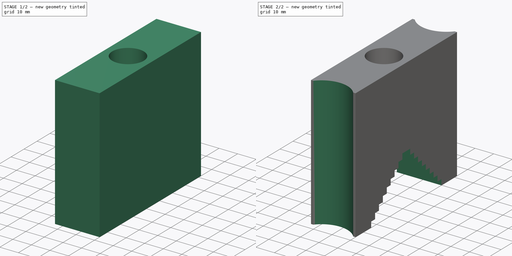
[diagram: build sequence overview — one tinted view per stage of 2, left to right]
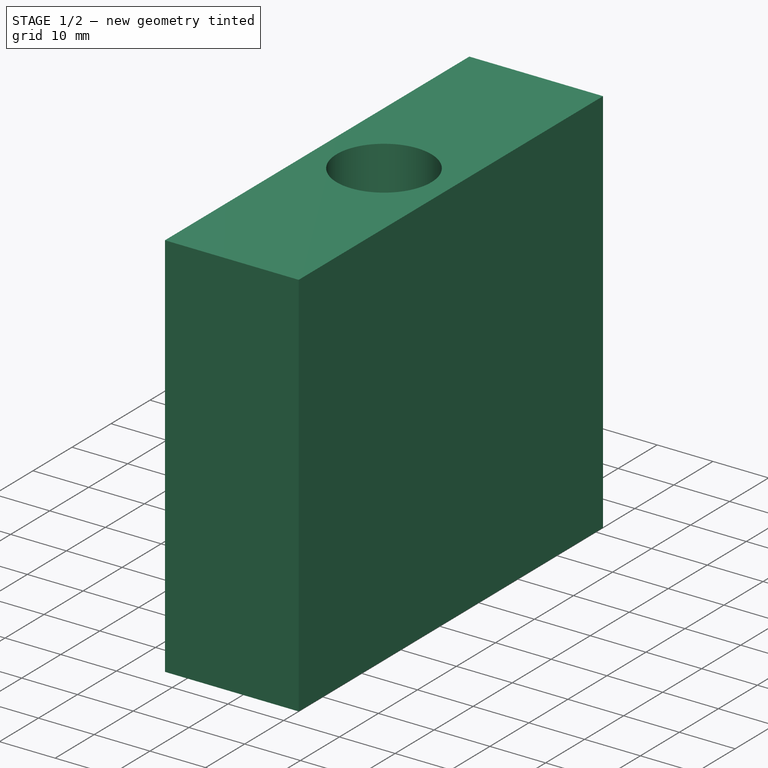
[diagram: stage 1 of 2 — iso view after this stage's code; geometry added in this stage tinted green]
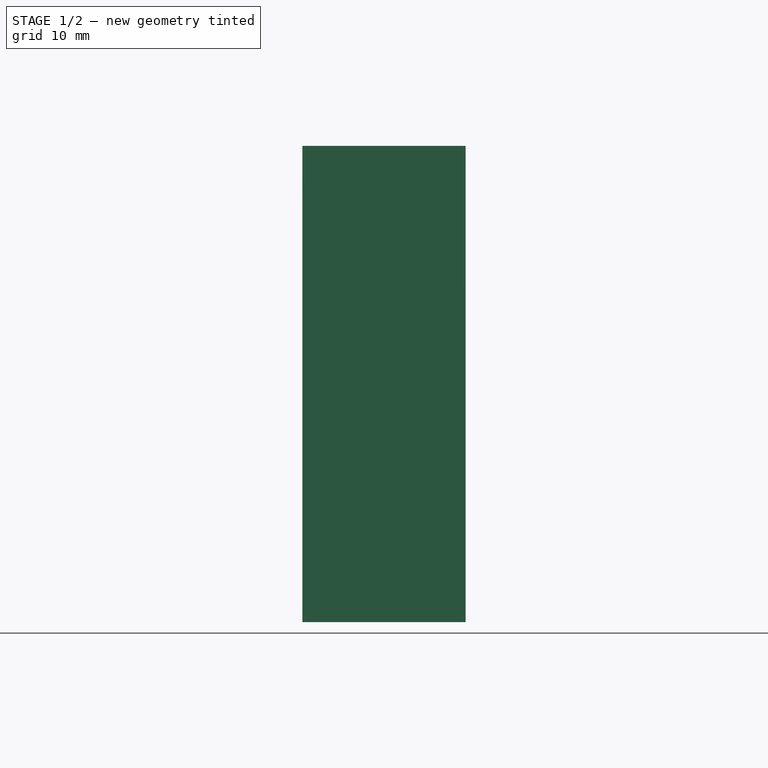
[diagram: stage 1 of 2 — front view after this stage's code; geometry added in this stage tinted green]
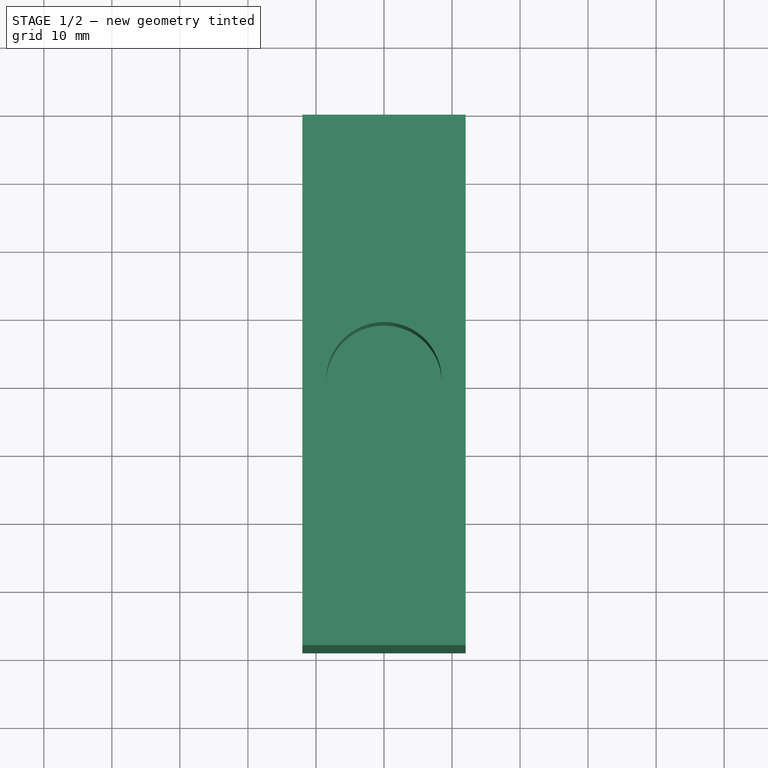
[diagram: stage 1 of 2 — top view after this stage's code; geometry added in this stage tinted green]
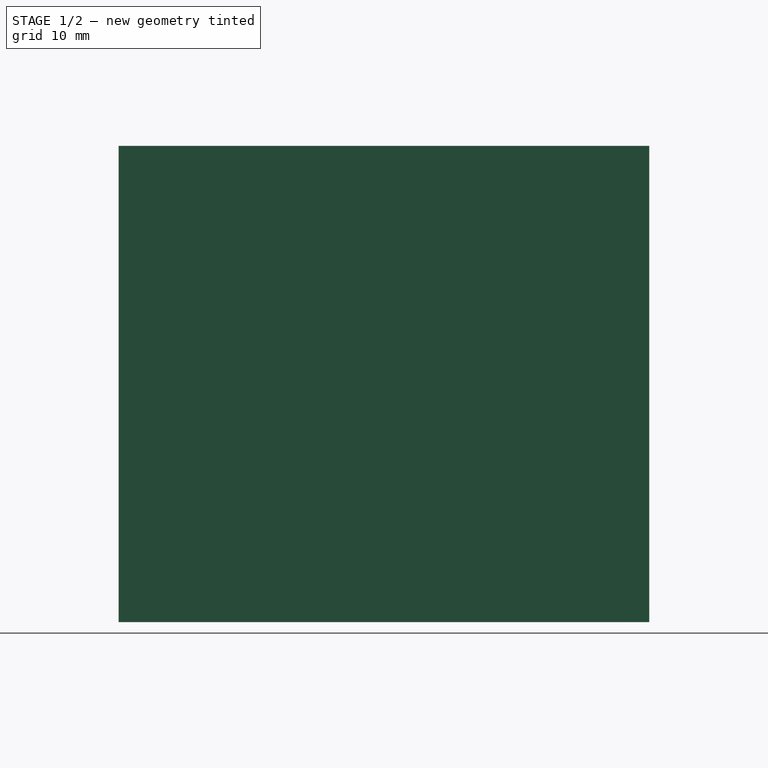
[diagram: stage 1 of 2 — right view after this stage's code; geometry added in this stage tinted green]
FCSTD DOCUMENT  (FreeCAD 0.18R4 (GitTag))
Label: part 3
License: All rights reserved
LicenseURL: http://en.wikipedia.org/wiki/All_rights_reserved
objects: Sketcher::SketchObject×4, PartDesign::Pocket×3, PartDesign::Pad×1, PartDesign::Body×1
note: 13 computed .brp shape members not serialized (recipe doc carries the construction recipe); baked Part::Feature solids carry a one-line shape summary decoded from their .brp

FEATURE [Sketcher::SketchObject] Sketch
  MapMode = 5
  Support = -> [XY_Plane]
  sketch-geometry (4):
    g0: LineSegment StartX=-12 StartY=-39 StartZ=0 EndX=12 EndY=-39 EndZ=0
    g1: LineSegment StartX=12 StartY=-39 StartZ=0 EndX=12 EndY=39 EndZ=0
    g2: LineSegment StartX=12 StartY=39 StartZ=0 EndX=-12 EndY=39 EndZ=0
    g3: LineSegment StartX=-12 StartY=39 StartZ=0 EndX=-12 EndY=-39 EndZ=0
  constraints (12):
    c: Coincident(g0,g1)
    c: Coincident(g1,g2)
    c: Coincident(g2,g3)
    c: Coincident(g3,g0)
    c: Horizontal(g0)
    c: Horizontal(g2)
    c: Vertical(g1)
    c: Vertical(g3)
    c: DistanceY(g0,g-1) = 39
    c: DistanceX(g0,g-1) = 12
    c: Distance(g3) = 78
    c: Distance(g0) = 24
FEATURE [PartDesign::Pad] Pad
  Length = 70
  Length2 = 100
  Profile = -> Sketch
  Type = 0
FEATURE [Sketcher::SketchObject] Sketch001
  MapMode = 5
  Placement = pos=(0,0,70) rot=(0,0,1;0rad)
  Support = -> [Pad]
  sketch-geometry (1):
    g0: Circle CenterX=0 CenterY=0 CenterZ=0 NormalX=0 NormalY=0 NormalZ=1 AngleXU=0 Radius=8.5
  constraints (2):
    c: Coincident(g0,g-1)
    c: Radius(g0) = 8.5
FEATURE [PartDesign::Pocket] Pocket
  BaseFeature = -> Pad
  Length = 30
  Length2 = 100
  Profile = -> Sketch001
  Type = 0
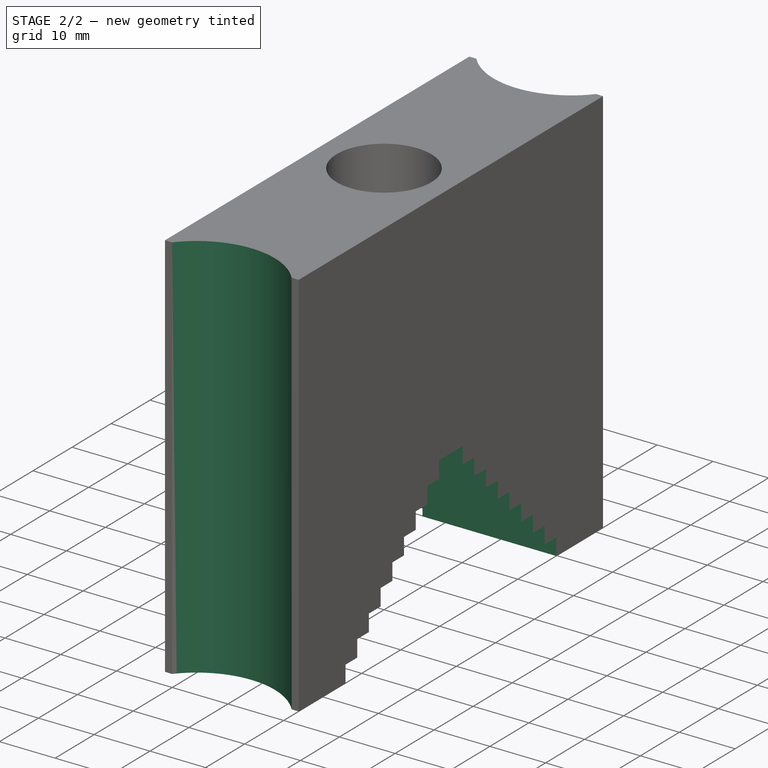
[diagram: stage 2 of 2 — iso view after this stage's code; geometry added in this stage tinted green]
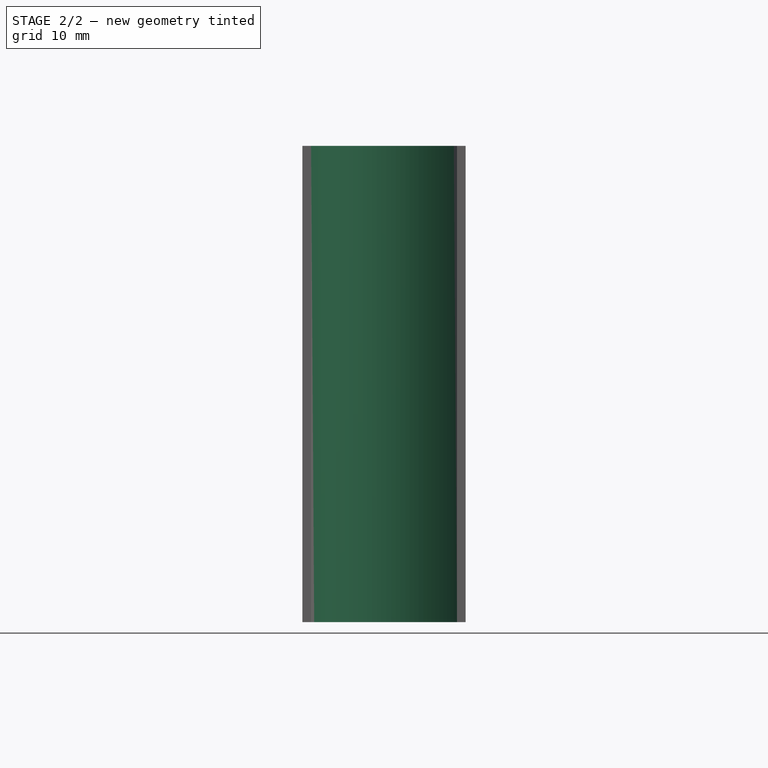
[diagram: stage 2 of 2 — front view after this stage's code; geometry added in this stage tinted green]
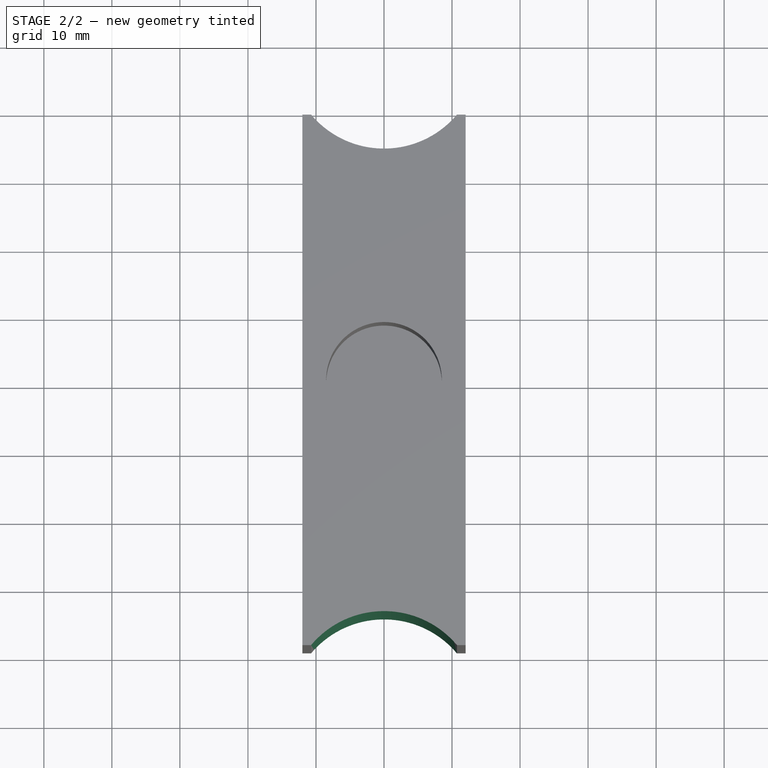
[diagram: stage 2 of 2 — top view after this stage's code; geometry added in this stage tinted green]
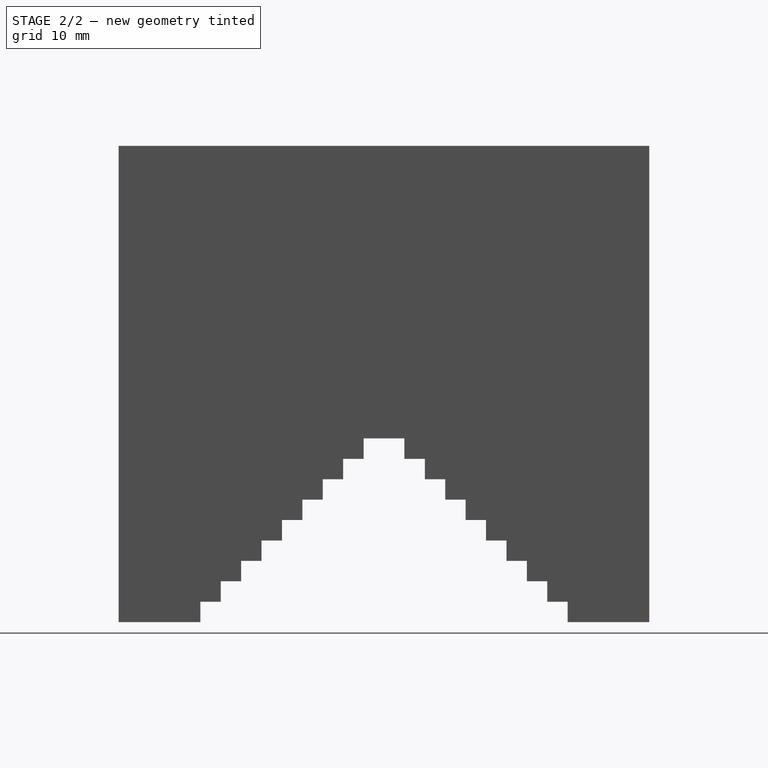
[diagram: stage 2 of 2 — right view after this stage's code; geometry added in this stage tinted green]
FEATURE [Sketcher::SketchObject] Sketch002
  ExternalGeometry = -> [Pocket]
  MapMode = 5
  Placement = pos=(0,0,70) rot=(0,0,1;0rad)
  Support = -> [Pocket]
  sketch-geometry (4):
    g0: ArcOfCircle CenterX=0 CenterY=48 CenterZ=0 NormalX=0 NormalY=0 NormalZ=1 AngleXU=0 Radius=14 StartAngle=3.83982 EndAngle=5.58496
    g1: LineSegment StartX=-10.7238 StartY=39 StartZ=0 EndX=10.7238 EndY=39 EndZ=0
    g2: ArcOfCircle CenterX=0 CenterY=-48 CenterZ=0 NormalX=0 NormalY=0 NormalZ=1 AngleXU=0 Radius=14 StartAngle=0.698222 EndAngle=2.44337
    g3: LineSegment StartX=-10.7238 StartY=-39 StartZ=0 EndX=10.7238 EndY=-39 EndZ=0
  constraints (14):
    c: DistanceY(g0,g-3) = 0
    c: DistanceY(g0,g-3) = 0
    c: DistanceY(g-3,g0) = 9
    c: DistanceX(g0,g-1) = 0
    c: Radius(g0) = 14
    c: Coincident(g1,g0)
    c: Coincident(g1,g0)
    c: Coincident(g3,g2)
    c: Coincident(g3,g2)
    c: Equal(g0,g2)
    c: Equal(g3,g1)
    c: DistanceY(g2,g-4) = 0
    c: DistanceY(g2,g-4) = 0
    c: DistanceX(g-1,g2) = 0
FEATURE [PartDesign::Pocket] Pocket001
  BaseFeature = -> Pocket
  Length = 70
  Length2 = 100
  Profile = -> Sketch002
  Type = 0
FEATURE [Sketcher::SketchObject] Sketch003
  MapMode = 5
  Placement = pos=(12,0,0) rot=(0.57735,0.57735,0.57735;2.0944rad)
  Support = -> [Pocket001]
  sketch-geometry (36):
    g0: LineSegment StartX=-27 StartY=3 StartZ=0 EndX=-27 EndY=0 EndZ=0
    g1: LineSegment StartX=-27 StartY=3 StartZ=0 EndX=-24 EndY=3 EndZ=0
    g2: LineSegment StartX=-24 StartY=6 StartZ=0 EndX=-24 EndY=3 EndZ=0
    g3: LineSegment StartX=-24 StartY=6 StartZ=0 EndX=-21 EndY=6 EndZ=0
    g4: LineSegment StartX=-21 StartY=9 StartZ=0 EndX=-21 EndY=6 EndZ=0
    g5: LineSegment StartX=-21 StartY=9 StartZ=0 EndX=-18 EndY=9 EndZ=0
    g6: LineSegment StartX=-18 StartY=12 StartZ=0 EndX=-18 EndY=9 EndZ=0
    g7: LineSegment StartX=-18 StartY=12 StartZ=0 EndX=-15 EndY=12 EndZ=0
    g8: LineSegment StartX=-15 StartY=15 StartZ=0 EndX=-15 EndY=12 EndZ=0
    g9: LineSegment StartX=-15 StartY=15 StartZ=0 EndX=-12 EndY=15 EndZ=0
    g10: LineSegment StartX=-12 StartY=18 StartZ=0 EndX=-12 EndY=15 EndZ=0
    g11: LineSegment StartX=-12 StartY=18 StartZ=0 EndX=-9 EndY=18 EndZ=0
    g12: LineSegment StartX=-9 StartY=21 StartZ=0 EndX=-9 EndY=18 EndZ=0
    g13: LineSegment StartX=-9 StartY=21 StartZ=0 EndX=-6 EndY=21 EndZ=0
    g14: LineSegment StartX=-6 StartY=21 StartZ=0 EndX=-6 EndY=24 EndZ=0
    g15: LineSegment StartX=-6 StartY=24 StartZ=0 EndX=-3 EndY=24 EndZ=0
    g16: LineSegment StartX=-3 StartY=27 StartZ=0 EndX=-3 EndY=24 EndZ=0
    g17: LineSegment StartX=-3 StartY=27 StartZ=0 EndX=3 EndY=27 EndZ=0
    g18: LineSegment StartX=3 StartY=27 StartZ=0 EndX=3 EndY=24 EndZ=0
    g19: LineSegment StartX=3 StartY=24 StartZ=0 EndX=6 EndY=24 EndZ=0
    g20: LineSegment StartX=6 StartY=24 StartZ=0 EndX=6 EndY=21 EndZ=0
    g21: LineSegment StartX=6 StartY=21 StartZ=0 EndX=9 EndY=21 EndZ=0
    g22: LineSegment StartX=9 StartY=21 StartZ=0 EndX=9 EndY=18 EndZ=0
    g23: LineSegment StartX=9 StartY=18 StartZ=0 EndX=12 EndY=18 EndZ=0
    g24: LineSegment StartX=12 StartY=18 StartZ=0 EndX=12 EndY=15 EndZ=0
    g25: LineSegment StartX=12 StartY=15 StartZ=0 EndX=15 EndY=15 EndZ=0
    g26: LineSegment StartX=15 StartY=15 StartZ=0 EndX=15 EndY=12 EndZ=0
    g27: LineSegment StartX=15 StartY=12 StartZ=0 EndX=18 EndY=12 EndZ=0
    g28: LineSegment StartX=18 StartY=12 StartZ=0 EndX=18 EndY=9 EndZ=0
    g29: LineSegment StartX=18 StartY=9 StartZ=0 EndX=21 EndY=9 EndZ=0
    g30: LineSegment StartX=21 StartY=9 StartZ=0 EndX=21 EndY=6 EndZ=0
    g31: LineSegment StartX=21 StartY=6 StartZ=0 EndX=24 EndY=6 EndZ=0
    g32: LineSegment StartX=24 StartY=6 StartZ=0 EndX=24 EndY=3 EndZ=0
    g33: LineSegment StartX=-27 StartY=0 StartZ=0 EndX=27 EndY=0 EndZ=0
    g34: LineSegment StartX=24 StartY=3 StartZ=0 EndX=27 EndY=3 EndZ=0
    g35: LineSegment StartX=27 StartY=3 StartZ=0 EndX=27 EndY=0 EndZ=0
  constraints (112):
    c: Coincident(g1,g0)
    c: Coincident(g2,g1)
    c: Coincident(g3,g2)
    c: Coincident(g4,g3)
    c: Coincident(g5,g4)
    c: Coincident(g5,g6)
    c: Coincident(g6,g7)
    c: Coincident(g8,g7)
    c: Coincident(g9,g8)
    c: Horizontal(g1)
    c: Horizontal(g3)
    c: Horizontal(g5)
    c: Horizontal(g7)
    c: Horizontal(g9)
    c: Vertical(g0)
    c: Vertical(g2)
    c: Vertical(g4)
    c: Vertical(g6)
    c: Vertical(g8)
    c: Coincident(g10,g9)
    c: Coincident(g11,g10)
    c: Coincident(g12,g11)
    c: Coincident(g13,g12)
    c: Coincident(g13,g14)
    c: Coincident(g15,g14)
    c: Coincident(g15,g16)
    c: Coincident(g16,g17)
    c: Horizontal(g17)
    c: Horizontal(g15)
    c: Horizontal(g13)
    c: Horizontal(g11)
    c: Vertical(g10)
    c: Vertical(g12)
    c: Vertical(g14)
    c: Vertical(g16)
    c: Distance(g0) = 3
    c: Equal(g0,g1)
    c: Equal(g1,g2)
    c: Equal(g2,g3)
    c: Equal(g3,g4)
    c: Equal(g4,g5)
    c: Equal(g5,g6)
    c: Equal(g6,g7)
    c: Equal(g7,g8)
    c: Equal(g8,g9)
    c: Equal(g9,g10)
    c: Equal(g10,g11)
    c: Equal(g11,g12)
    c: Equal(g12,g13)
    c: Equal(g13,g14)
    c: Equal(g14,g15)
    c: Equal(g15,g16)
    c: Distance(g17) = 6
    c: Vertical(g18)
    c: Vertical(g20)
    c: Vertical(g22)
    c: Vertical(g24)
    c: Vertical(g26)
    c: Vertical(g28)
    c: Vertical(g30)
    c: Vertical(g32)
    c: Horizontal(g19)
    c: Horizontal(g21)
    c: Horizontal(g23)
    c: Horizontal(g25)
    c: Horizontal(g27)
    c: Horizontal(g29)
    c: Horizontal(g31)
    c: Coincident(g18,g17)
    c: Coincident(g19,g18)
    c: Coincident(g20,g19)
    c: Coincident(g21,g20)
    c: Coincident(g21,g22)
    c: Coincident(g23,g22)
    c: Coincident(g23,g24)
    c: Coincident(g25,g24)
    c: Coincident(g25,g26)
    c: Coincident(g27,g26)
    c: Coincident(g28,g27)
    c: Coincident(g28,g29)
    c: Coincident(g29,g30)
    c: Coincident(g30,g31)
    c: Coincident(g31,g32)
    c: Distance(g18) = 3
    c: Equal(g18,g19)
    c: Equal(g19,g20)
    c: Equal(g20,g21)
    c: Equal(g21,g22)
    c: Equal(g22,g23)
    c: Equal(g23,g24)
    c: Equal(g24,g25)
    c: Equal(g25,g26)
    c: Equal(g26,g27)
    c: Equal(g27,g28)
    c: Equal(g28,g29)
    c: Equal(g29,g30)
    c: Equal(g30,g31)
    c: Equal(g31,g32)
    c: Coincident(g33,g0)
    c: Coincident(g34,g32)
    c: Coincident(g34,g35)
    c: Coincident(g35,g33)
    c: Vertical(g35)
    c: Horizontal(g34)
    c: Horizontal(g33)
    c: Equal(g31,g30)
    c: Equal(g31,g32)
    c: Equal(g32,g34)
    c: Equal(g34,g35)
    c: Distance(g33) = 54
    c: DistanceY(g-1,g0) = 0
    c: DistanceX(g0,g-1) = 27
FEATURE [PartDesign::Pocket] Pocket002
  BaseFeature = -> Pocket001
  Length = 24
  Length2 = 100
  Profile = -> Sketch003
  Type = 0
FEATURE [PartDesign::Body] Body
  Group = -> [Sketch,Pad,Sketch001,Pocket,Sketch002,Pocket001,Sketch003,Pocket002]
  Origin = -> Origin
  Tip = -> Pocket002
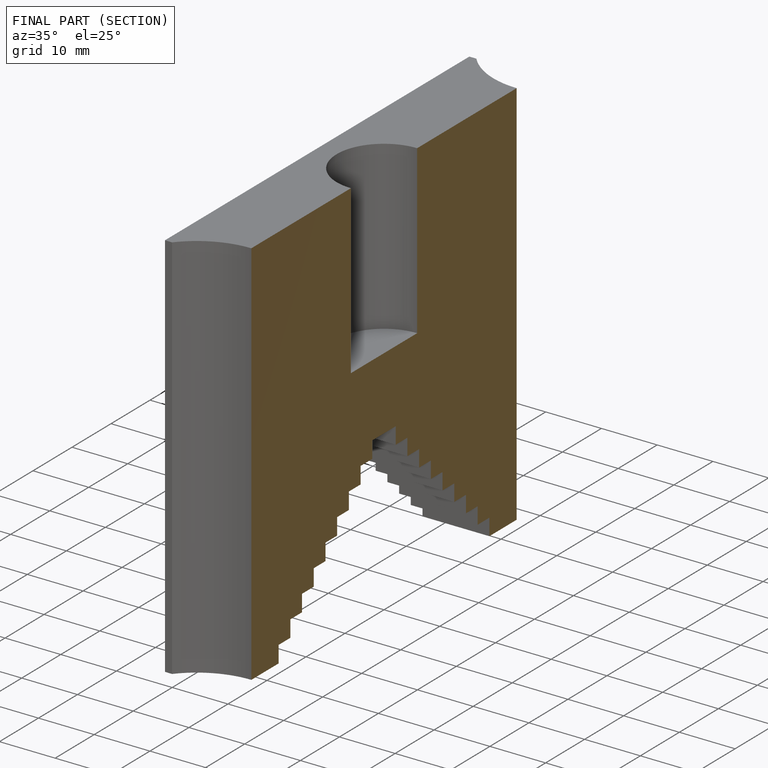
[diagram: finished part — half-section view (interior)]
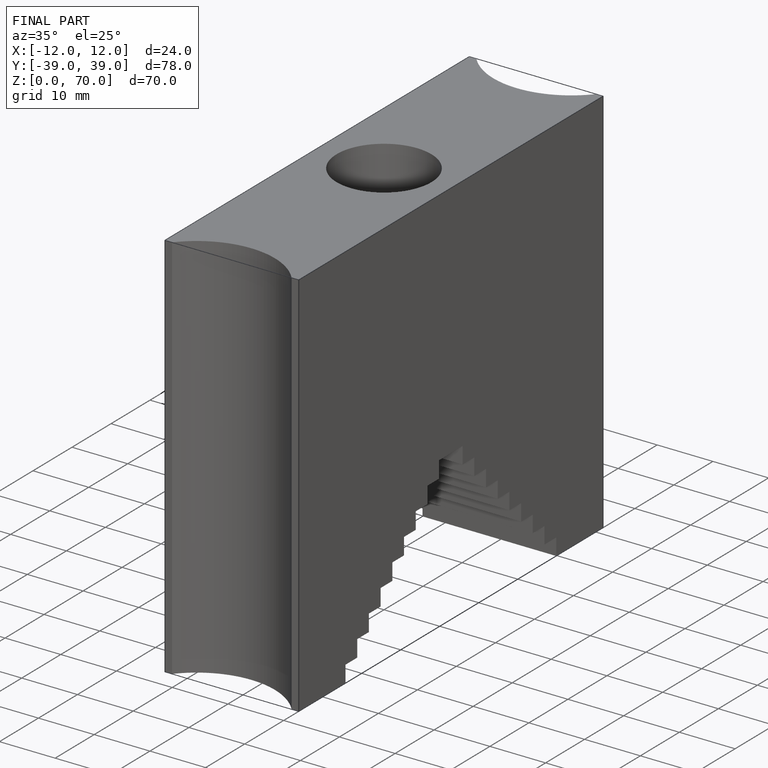
[diagram: finished part — iso view with bounding-box wireframe]
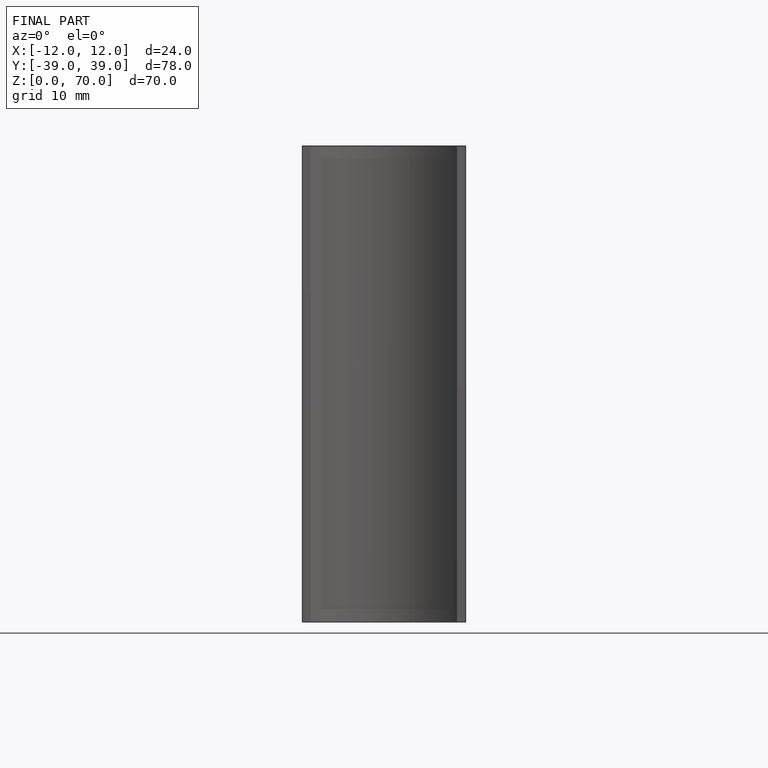
[diagram: finished part — front view with bounding-box wireframe]
